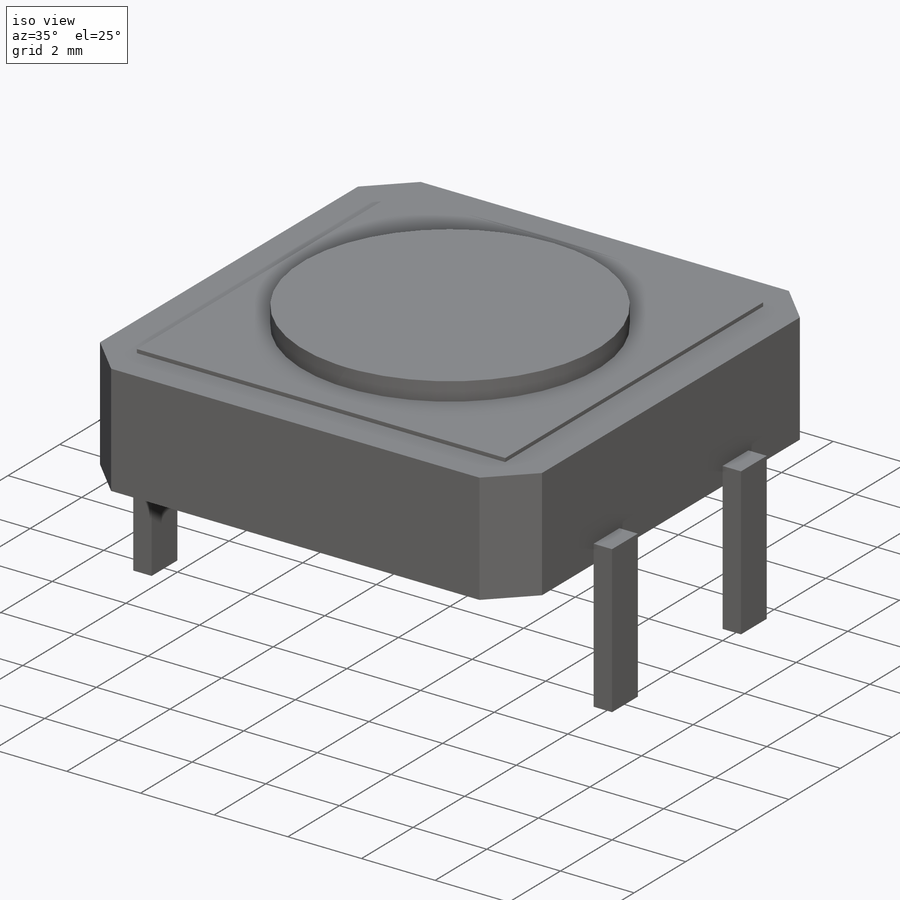
[diagram: iso view]
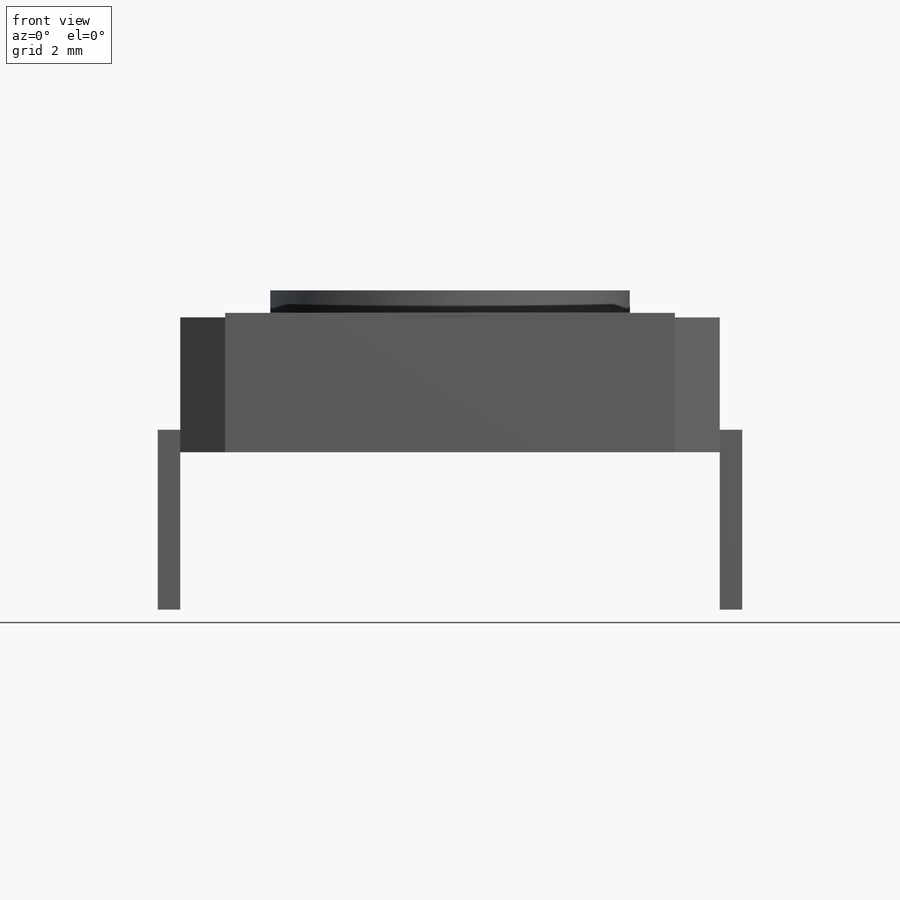
[diagram: front view]
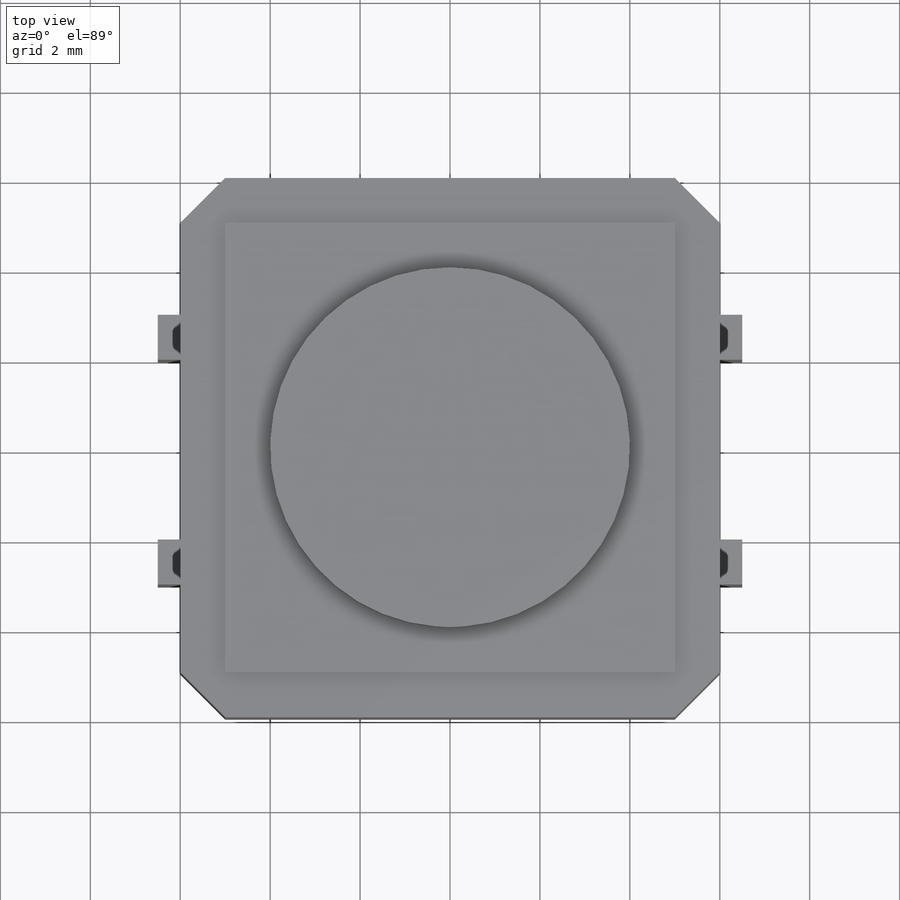
[diagram: top view]
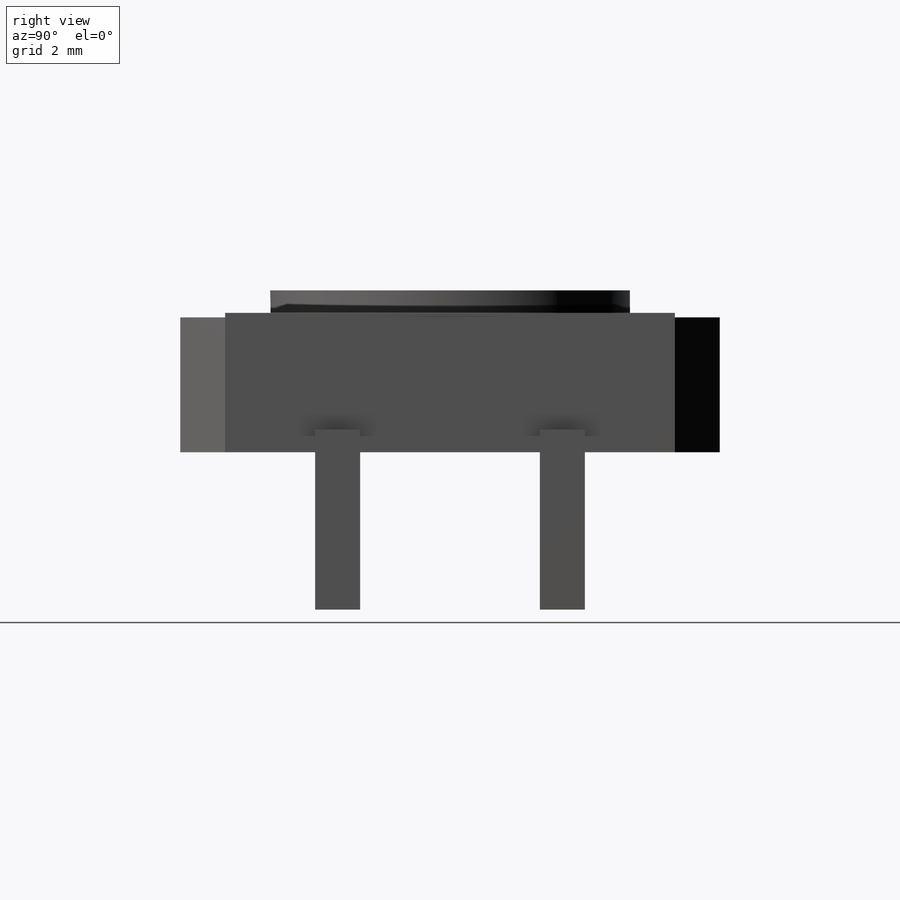
[diagram: right view]
SOLIDWORKS PART (.sldprt)
format: sldprt  version: not decoded by parser v0  size: 261,632 bytes
history: native  units: mm
features: sketch x5, extrude x5, plane x3, material x1, pattern_linear x1 (+9 scaffold rows collapsed)
feature tree (24):
  scaffold x9  (default folders/planes/origin — collapsed)
  material  "Matériau <non spécifié>"
  plane  "Plan de face"
  plane  "Plan de dessus"
  plane  "Plan de droite"
  sketch  "Esquisse1"  dims[D1=12.0mm D2=12.0mm]
  extrude  "Boss.-Extru.2"  Depth=3mm
  sketch  "Esquisse2"  dims[c1.D1=1.0mm c1.D2=~10.175228mm c1.D3=1.0mm c2.D2=1.0mm c2.D4=1.0mm]
  extrude  "Boss.-Extru.3"  Depth=0.1mm
  sketch  "Esquisse3"  dims[D1=6.0mm D2=6.0mm]
  extrude  "Boss.-Extru.4"  Depth=0.5mm
  sketch  "Esquisse4"  dims[D1=1.0mm D2=2.0mm D3=4.0mm D4=2.5mm]
  extrude  "Boss.-Extru.5"  Depth=0.5mm
  sketch  "Esquisse7"  dims[c1.D1=1.0mm c1.D2=2.0mm c1.D3=4.0mm c1.D4=2.5mm c2.D2=1.0mm c3.D2=90.0deg c4.D2=1.0mm c5.D2=90.0deg c6.D2=2.0mm c6.D4=2.5mm c7.D2=2.0mm]
  extrude  "Boss.-Extru.7"  Depth=0.5mm
  pattern_linear  "Répétition linéaire1"  Count1=2 Count2=1 Spacing1=5mm Spacing2=10mm
decode coverage: 11 of 11 modeling features carry decoded parameters
note: ~ marks probable driven/reference dimensions
note: suppression state not decoded; provenance and decode notes live in map.json
